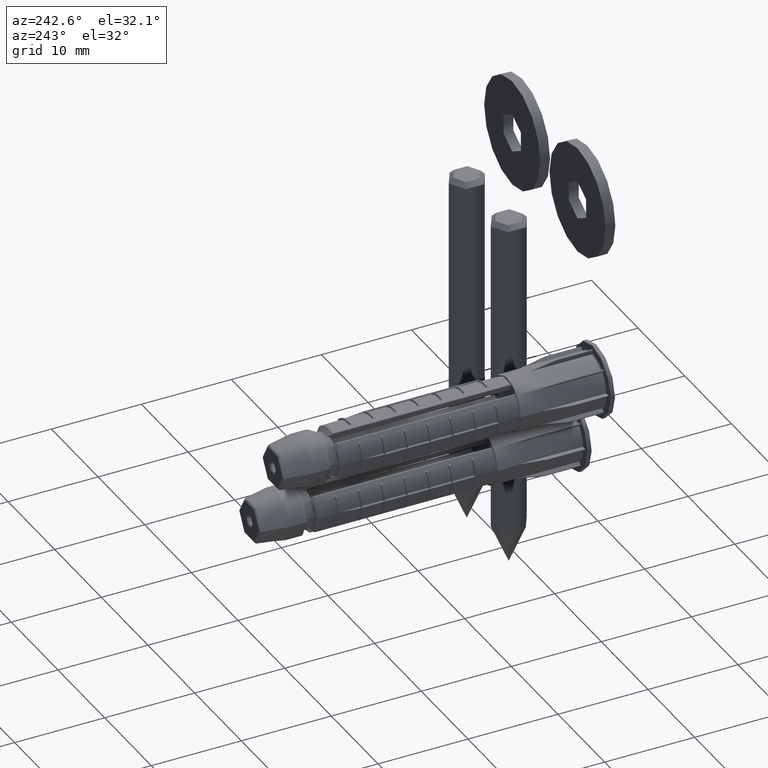
[diagram: clean part render]
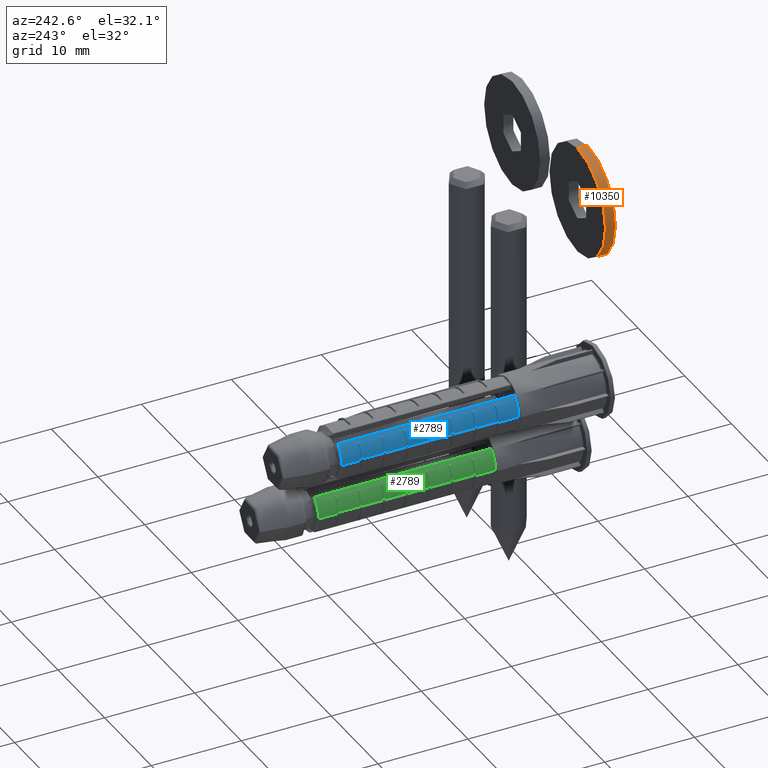
[diagram: same view with three faces highlighted in distinct colors, each labeled with its STEP entity id]
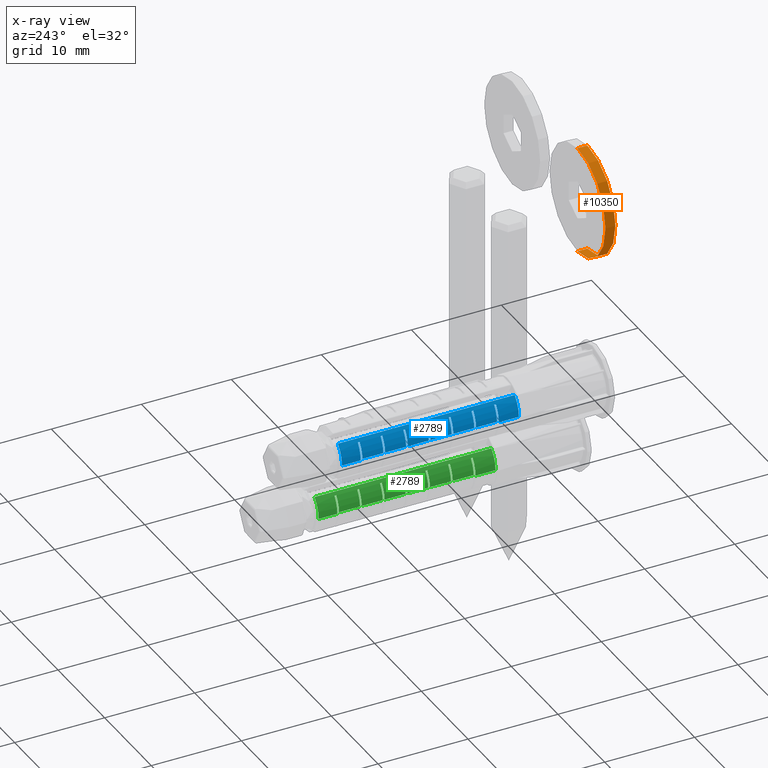
[diagram: x-ray of the same camera — body ghosted, the three highlighted faces saturated]
A machine part, auxiliary view with three faces highlighted in distinct colors.
The next image is the same camera in x-ray (body ghosted, the three faces saturated) — at least one of them is partly hidden behind the body in this view.
Their STEP definitions:

[orange] entity #10350 — the highlighted cylindrical surface (partial cylindrical patch) has radius 6 mm, axis along (-0, -1, -0).
#1043 = LINE ( 'NONE', #27231, #20848 ) ;
#1214 = ORIENTED_EDGE ( 'NONE', *, *, #17098, .F. ) ;
#1373 = LINE ( 'NONE', #24141, #23449 ) ;
#2251 = CARTESIAN_POINT ( 'NONE',  ( 0.000000000000000000, 0.5500000000000000444, 0.000000000000000000 ) ) ;
#2936 = DIRECTION ( 'NONE',  ( -0.000000000000000000, -1.000000000000000000, -0.000000000000000000 ) ) ;
#4201 = DIRECTION ( 'NONE',  ( -0.000000000000000000, -1.000000000000000000, -0.000000000000000000 ) ) ;
#4629 = EDGE_LOOP ( 'NONE', ( #1214, #10319, #25232, #19930 ) ) ;
#5577 = DIRECTION ( 'NONE',  ( 0.000000000000000000, 0.000000000000000000, 1.000000000000000000 ) ) ;
#6791 = VERTEX_POINT ( 'NONE', #8065 ) ;
#7877 = FACE_OUTER_BOUND ( 'NONE', #4629, .T. ) ;
#8035 = CIRCLE ( 'NONE', #17137, 6.000000000000000888 ) ;
#8065 = CARTESIAN_POINT ( 'NONE',  ( 0.000000000000000000, -0.5500000000000000444, -6.000000000000000888 ) ) ;
#8663 = CARTESIAN_POINT ( 'NONE',  ( 0.000000000000000000, -0.5500000000000000444, 0.000000000000000000 ) ) ;
#9011 = AXIS2_PLACEMENT_3D ( 'NONE', #8663, #23380, #10451 ) ;
#9936 = CARTESIAN_POINT ( 'NONE',  ( 7.347880794884120722E-16, -0.5500000000000000444, 6.000000000000000888 ) ) ;
#10319 = ORIENTED_EDGE ( 'NONE', *, *, #16477, .F. ) ;
#10350 = ADVANCED_FACE ( 'NONE', ( #7877 ), #27314, .T. ) ;
#10451 = DIRECTION ( 'NONE',  ( 0.000000000000000000, 0.000000000000000000, 1.000000000000000000 ) ) ;
#10935 = VERTEX_POINT ( 'NONE', #21763 ) ;
#15593 = EDGE_CURVE ( 'NONE', #6791, #22182, #26791, .T. ) ;
#16477 = EDGE_CURVE ( 'NONE', #10935, #26524, #8035, .T. ) ;
#17098 = EDGE_CURVE ( 'NONE', #26524, #22182, #1043, .T. ) ;
#17137 = AXIS2_PLACEMENT_3D ( 'NONE', #20683, #26735, #5577 ) ;
#17642 = EDGE_CURVE ( 'NONE', #10935, #6791, #1373, .T. ) ;
#17908 = AXIS2_PLACEMENT_3D ( 'NONE', #2251, #20787, #24822 ) ;
#18749 = CARTESIAN_POINT ( 'NONE',  ( 7.347880794884120722E-16, 0.5500000000000000444, 6.000000000000000888 ) ) ;
#19930 = ORIENTED_EDGE ( 'NONE', *, *, #15593, .T. ) ;
#20683 = CARTESIAN_POINT ( 'NONE',  ( 0.000000000000000000, 0.5500000000000000444, 0.000000000000000000 ) ) ;
#20787 = DIRECTION ( 'NONE',  ( -0.000000000000000000, -1.000000000000000000, -0.000000000000000000 ) ) ;
#20848 = VECTOR ( 'NONE', #4201, 1000.000000000000000 ) ;
#21763 = CARTESIAN_POINT ( 'NONE',  ( 0.000000000000000000, 0.5500000000000000444, -6.000000000000000888 ) ) ;
#22182 = VERTEX_POINT ( 'NONE', #9936 ) ;
#23380 = DIRECTION ( 'NONE',  ( 0.000000000000000000, 1.000000000000000000, 0.000000000000000000 ) ) ;
#23449 = VECTOR ( 'NONE', #2936, 1000.000000000000000 ) ;
#24141 = CARTESIAN_POINT ( 'NONE',  ( 0.000000000000000000, 0.5500000000000000444, -6.000000000000000888 ) ) ;
#24822 = DIRECTION ( 'NONE',  ( 0.000000000000000000, 0.000000000000000000, -1.000000000000000000 ) ) ;
#25232 = ORIENTED_EDGE ( 'NONE', *, *, #17642, .T. ) ;
#26524 = VERTEX_POINT ( 'NONE', #18749 ) ;
#26735 = DIRECTION ( 'NONE',  ( 0.000000000000000000, 1.000000000000000000, 0.000000000000000000 ) ) ;
#26791 = CIRCLE ( 'NONE', #9011, 6.000000000000000888 ) ;
#27231 = CARTESIAN_POINT ( 'NONE',  ( 7.347880794884120722E-16, 0.5500000000000000444, 6.000000000000000888 ) ) ;
#27314 = CYLINDRICAL_SURFACE ( 'NONE', #17908, 6.000000000000000888 ) ;

[blue] entity #2789 — the highlighted cylindrical surface (edge-blend (fillet) strip) has radius 2.8 mm, axis along (0, 1, 0).
#17 = VERTEX_POINT ( 'NONE', #19890 ) ;
#137 = AXIS2_PLACEMENT_3D ( 'NONE', #14320, #14230, #18545 ) ;
#160 = DIRECTION ( 'NONE',  ( -0.000000000000000000, 1.204669080539449405E-17, 1.000000000000000000 ) ) ;
#344 = DIRECTION ( 'NONE',  ( -0.000000000000000000, 1.204669080539449405E-17, 1.000000000000000000 ) ) ;
#362 = ORIENTED_EDGE ( 'NONE', *, *, #10299, .T. ) ;
#365 = VECTOR ( 'NONE', #12148, 1000.000000000000000 ) ;
#406 = CIRCLE ( 'NONE', #27350, 2.799999999999999822 ) ;
#414 = DIRECTION ( 'NONE',  ( 0.000000000000000000, 6.803593328596414068E-18, 1.000000000000000000 ) ) ;
#555 = VERTEX_POINT ( 'NONE', #16125 ) ;
#672 = EDGE_CURVE ( 'NONE', #23016, #23706, #13032, .T. ) ;
#744 = DIRECTION ( 'NONE',  ( 0.000000000000000000, 1.000000000000000000, 0.000000000000000000 ) ) ;
#984 = VERTEX_POINT ( 'NONE', #7423 ) ;
#1004 = CARTESIAN_POINT ( 'NONE',  ( 1.751241625994621520, 2.184754624067359874, -24.94999999999999574 ) ) ;
#1005 = CARTESIAN_POINT ( 'NONE',  ( 1.751241625994621520, 2.184754624067359874, -22.42499999999999716 ) ) ;
#1154 = VERTEX_POINT ( 'NONE', #5720 ) ;
#1310 = VERTEX_POINT ( 'NONE', #23611 ) ;
#1517 = DIRECTION ( 'NONE',  ( 0.000000000000000000, -1.000000000000000000, 0.000000000000000000 ) ) ;
#1588 = ORIENTED_EDGE ( 'NONE', *, *, #10929, .T. ) ;
#1655 = VECTOR ( 'NONE', #4380, 1000.000000000000000 ) ;
#1720 = CARTESIAN_POINT ( 'NONE',  ( 0.1223901485578622744, 2.797323837444636307, -36.00000000000000000 ) ) ;
#1731 = DIRECTION ( 'NONE',  ( -0.000000000000000000, 1.204669080539449405E-17, 1.000000000000000000 ) ) ;
#1839 = VECTOR ( 'NONE', #3785, 1000.000000000000000 ) ;
#1847 = CARTESIAN_POINT ( 'NONE',  ( 0.1223901485578622467, 2.797323837444635419, -24.94999999999999574 ) ) ;
#1918 = CARTESIAN_POINT ( 'NONE',  ( 0.000000000000000000, -1.788933584601082563E-16, -14.84999999999999964 ) ) ;
#1995 = VERTEX_POINT ( 'NONE', #18942 ) ;
#2017 = ORIENTED_EDGE ( 'NONE', *, *, #17731, .T. ) ;
#2018 = CARTESIAN_POINT ( 'NONE',  ( 0.000000000000000000, 2.799999999999999822, -10.09999999999999787 ) ) ;
#2133 = EDGE_CURVE ( 'NONE', #14842, #11018, #11380, .T. ) ;
#2270 = LINE ( 'NONE', #24503, #12536 ) ;
#2371 = CARTESIAN_POINT ( 'NONE',  ( 0.000000000000000000, -2.701470413109714557E-16, -22.42499999999999716 ) ) ;
#2599 = VECTOR ( 'NONE', #16470, 1000.000000000000000 ) ;
#2789 = ADVANCED_FACE ( 'NONE', ( #3398 ), #14652, .T. ) ;
#2998 = EDGE_CURVE ( 'NONE', #1310, #17, #4739, .T. ) ;
#3063 = VECTOR ( 'NONE', #414, 1000.000000000000000 ) ;
#3117 = CARTESIAN_POINT ( 'NONE',  ( 0.000000000000000000, -3.309828298782136709E-16, -27.47499999999999076 ) ) ;
#3311 = AXIS2_PLACEMENT_3D ( 'NONE', #16002, #9963, #9871 ) ;
#3361 = AXIS2_PLACEMENT_3D ( 'NONE', #4915, #5181, #11557 ) ;
#3398 = FACE_OUTER_BOUND ( 'NONE', #3936, .T. ) ;
#3785 = DIRECTION ( 'NONE',  ( 0.000000000000000000, 6.803593328596414068E-18, 1.000000000000000000 ) ) ;
#3865 = CARTESIAN_POINT ( 'NONE',  ( 0.1223901485578622467, 2.797323837444635419, -22.62500000000000000 ) ) ;
#3936 = EDGE_LOOP ( 'NONE', ( #6145, #362, #1588, #22692, #5231, #27049, #13398, #2017, #26839, #23644, #9461, #4097, #23793, #15963, #10796, #24927, #16708, #26231, #18418, #13595, #22249, #21772, #11459, #15328, #18233, #15674, #12454, #15476, #7107, #6762, #12680, #18392 ) ) ;
#3981 = CARTESIAN_POINT ( 'NONE',  ( 0.000000000000000000, -3.029742737556715059E-16, -25.14999999999999858 ) ) ;
#4002 = CARTESIAN_POINT ( 'NONE',  ( 0.000000000000000000, -2.024069015257432827E-16, -29.74999999999999645 ) ) ;
#4012 = LINE ( 'NONE', #26310, #13580 ) ;
#4097 = ORIENTED_EDGE ( 'NONE', *, *, #13171, .T. ) ;
#4115 = EDGE_CURVE ( 'NONE', #11018, #24163, #6676, .T. ) ;
#4133 = DIRECTION ( 'NONE',  ( -0.000000000000000000, 1.204669080539449405E-17, 1.000000000000000000 ) ) ;
#4380 = DIRECTION ( 'NONE',  ( 0.000000000000000000, 6.803593328596414068E-18, 1.000000000000000000 ) ) ;
#4391 = VERTEX_POINT ( 'NONE', #22168 ) ;
#4476 = EDGE_CURVE ( 'NONE', #18483, #5214, #13251, .T. ) ;
#4632 = DIRECTION ( 'NONE',  ( -0.000000000000000000, -6.803593328596413297E-18, -1.000000000000000000 ) ) ;
#4726 = DIRECTION ( 'NONE',  ( -0.000000000000000000, 1.204669080539449405E-17, 1.000000000000000000 ) ) ;
#4736 = VERTEX_POINT ( 'NONE', #5210 ) ;
#4739 = LINE ( 'NONE', #7584, #7716 ) ;
#4819 = VERTEX_POINT ( 'NONE', #10312 ) ;
#4915 = CARTESIAN_POINT ( 'NONE',  ( 0.000000000000000000, -3.333921680392925148E-16, -27.67499999999999361 ) ) ;
#5181 = DIRECTION ( 'NONE',  ( -0.000000000000000000, 1.204669080539449405E-17, 1.000000000000000000 ) ) ;
#5210 = CARTESIAN_POINT ( 'NONE',  ( 0.000000000000000000, 2.799999999999999378, -12.32500000000000107 ) ) ;
#5214 = VERTEX_POINT ( 'NONE', #3865 ) ;
#5231 = ORIENTED_EDGE ( 'NONE', *, *, #20589, .F. ) ;
#5293 = DIRECTION ( 'NONE',  ( 0.000000000000000000, -1.000000000000000000, 0.000000000000000000 ) ) ;
#5325 = DIRECTION ( 'NONE',  ( 0.000000000000000000, 6.803593328596414068E-18, 1.000000000000000000 ) ) ;
#5720 = CARTESIAN_POINT ( 'NONE',  ( 0.1223901485578622467, 2.797323837444635419, -19.89999999999999858 ) ) ;
#5843 = VECTOR ( 'NONE', #10007, 1000.000000000000000 ) ;
#5874 = DIRECTION ( 'NONE',  ( 0.000000000000000000, 1.000000000000000000, 0.000000000000000000 ) ) ;
#5978 = AXIS2_PLACEMENT_3D ( 'NONE', #22517, #15992, #1517 ) ;
#6145 = ORIENTED_EDGE ( 'NONE', *, *, #9246, .F. ) ;
#6172 = VERTEX_POINT ( 'NONE', #23922 ) ;
#6183 = VERTEX_POINT ( 'NONE', #11347 ) ;
#6240 = LINE ( 'NONE', #6611, #16775 ) ;
#6305 = CARTESIAN_POINT ( 'NONE',  ( 1.751241625994621742, 2.184754624067359874, -12.32500000000000107 ) ) ;
#6327 = DIRECTION ( 'NONE',  ( 0.000000000000000000, 6.803593328596414068E-18, 1.000000000000000000 ) ) ;
#6388 = AXIS2_PLACEMENT_3D ( 'NONE', #27052, #1731, #16650 ) ;
#6504 = EDGE_CURVE ( 'NONE', #23706, #19671, #10265, .T. ) ;
#6611 = CARTESIAN_POINT ( 'NONE',  ( 1.751241625994621520, 2.184754624067360318, -36.00000000000000000 ) ) ;
#6655 = DIRECTION ( 'NONE',  ( 0.000000000000000000, -1.000000000000000000, 0.000000000000000000 ) ) ;
#6661 = CARTESIAN_POINT ( 'NONE',  ( 2.053128646110991884, 1.903854711504647579, -36.00000000000000000 ) ) ;
#6676 = CIRCLE ( 'NONE', #23605, 2.799999999999999822 ) ;
#6699 = CARTESIAN_POINT ( 'NONE',  ( 1.751241625994621742, 2.184754624067360318, -36.00000000000000000 ) ) ;
#6762 = ORIENTED_EDGE ( 'NONE', *, *, #27193, .F. ) ;
#7015 = CIRCLE ( 'NONE', #15894, 2.799999999999999822 ) ;
#7107 = ORIENTED_EDGE ( 'NONE', *, *, #6504, .T. ) ;
#7334 = CIRCLE ( 'NONE', #137, 2.799999999999999378 ) ;
#7423 = CARTESIAN_POINT ( 'NONE',  ( 1.751241625994621742, 2.184754624067359874, -17.37499999999999645 ) ) ;
#7584 = CARTESIAN_POINT ( 'NONE',  ( 0.1223901485578622744, 2.797323837444636307, -36.00000000000000000 ) ) ;
#7716 = VECTOR ( 'NONE', #13920, 1000.000000000000000 ) ;
#7819 = LINE ( 'NONE', #22384, #5843 ) ;
#7981 = CARTESIAN_POINT ( 'NONE',  ( 1.751241625994621520, 2.184754624067359874, -27.47499999999999076 ) ) ;
#8032 = EDGE_CURVE ( 'NONE', #23942, #14683, #6240, .T. ) ;
#8128 = CARTESIAN_POINT ( 'NONE',  ( 0.000000000000000000, -1.508848023375660420E-16, -12.52500000000000213 ) ) ;
#8291 = VERTEX_POINT ( 'NONE', #7981 ) ;
#8409 = DIRECTION ( 'NONE',  ( -0.000000000000000000, 1.204669080539449405E-17, 1.000000000000000000 ) ) ;
#8700 = EDGE_CURVE ( 'NONE', #15712, #8291, #2270, .T. ) ;
#8874 = VERTEX_POINT ( 'NONE', #10364 ) ;
#9170 = DIRECTION ( 'NONE',  ( -0.000000000000000000, -6.803593328596414068E-18, -1.000000000000000000 ) ) ;
#9246 = EDGE_CURVE ( 'NONE', #22665, #4736, #22082, .T. ) ;
#9461 = ORIENTED_EDGE ( 'NONE', *, *, #8032, .T. ) ;
#9871 = DIRECTION ( 'NONE',  ( 0.000000000000000000, -1.000000000000000000, 0.000000000000000000 ) ) ;
#9928 = DIRECTION ( 'NONE',  ( -0.000000000000000000, 1.204669080539449405E-17, 1.000000000000000000 ) ) ;
#9963 = DIRECTION ( 'NONE',  ( -0.000000000000000000, 1.204669080539449405E-17, 1.000000000000000000 ) ) ;
#9983 = CARTESIAN_POINT ( 'NONE',  ( 0.1223901485578622744, 2.797323837444636307, -36.00000000000000000 ) ) ;
#10005 = CARTESIAN_POINT ( 'NONE',  ( 1.751241625994621520, 2.184754624067359874, -22.62500000000000000 ) ) ;
#10007 = DIRECTION ( 'NONE',  ( -0.000000000000000000, -6.803593328596414068E-18, -1.000000000000000000 ) ) ;
#10231 = CARTESIAN_POINT ( 'NONE',  ( 0.000000000000000000, -6.871629261882377608E-17, -10.09999999999999787 ) ) ;
#10265 = LINE ( 'NONE', #10943, #1655 ) ;
#10299 = EDGE_CURVE ( 'NONE', #22665, #25868, #14813, .T. ) ;
#10312 = CARTESIAN_POINT ( 'NONE',  ( 1.751241625994621520, 2.184754624067359874, -20.10000000000000142 ) ) ;
#10364 = CARTESIAN_POINT ( 'NONE',  ( 0.1223901485578622467, 2.797323837444635419, -20.10000000000000142 ) ) ;
#10713 = DIRECTION ( 'NONE',  ( 0.000000000000000000, -1.000000000000000000, 0.000000000000000000 ) ) ;
#10716 = DIRECTION ( 'NONE',  ( 0.000000000000000000, -1.000000000000000000, 0.000000000000000000 ) ) ;
#10796 = ORIENTED_EDGE ( 'NONE', *, *, #2133, .T. ) ;
#10815 = VERTEX_POINT ( 'NONE', #6305 ) ;
#10843 = CIRCLE ( 'NONE', #22867, 2.799999999999999822 ) ;
#10929 = EDGE_CURVE ( 'NONE', #25868, #24108, #14457, .T. ) ;
#10943 = CARTESIAN_POINT ( 'NONE',  ( 0.1223901485578622744, 2.797323837444636307, -36.00000000000000000 ) ) ;
#10960 = EDGE_CURVE ( 'NONE', #1154, #555, #17753, .T. ) ;
#11018 = VERTEX_POINT ( 'NONE', #1005 ) ;
#11085 = AXIS2_PLACEMENT_3D ( 'NONE', #25624, #4632, #744 ) ;
#11347 = CARTESIAN_POINT ( 'NONE',  ( 0.1223901485578622467, 2.797323837444635419, -15.05000000000000071 ) ) ;
#11379 = EDGE_CURVE ( 'NONE', #4391, #1154, #10843, .T. ) ;
#11380 = LINE ( 'NONE', #6699, #3063 ) ;
#11459 = ORIENTED_EDGE ( 'NONE', *, *, #22688, .T. ) ;
#11557 = DIRECTION ( 'NONE',  ( 0.000000000000000000, -1.000000000000000000, 0.000000000000000000 ) ) ;
#12018 = CARTESIAN_POINT ( 'NONE',  ( 1.751241625994621742, 2.184754624067360318, -36.00000000000000000 ) ) ;
#12083 = CARTESIAN_POINT ( 'NONE',  ( 1.751241625994621742, 2.184754624067359874, -12.52500000000000213 ) ) ;
#12148 = DIRECTION ( 'NONE',  ( 0.000000000000000000, 6.803593328596414068E-18, 1.000000000000000000 ) ) ;
#12266 = CIRCLE ( 'NONE', #13792, 2.799999999999999822 ) ;
#12322 = CARTESIAN_POINT ( 'NONE',  ( 1.751241625994621742, 2.184754624067360318, -36.00000000000000000 ) ) ;
#12411 = AXIS2_PLACEMENT_3D ( 'NONE', #3981, #4726, #19439 ) ;
#12454 = ORIENTED_EDGE ( 'NONE', *, *, #22266, .T. ) ;
#12536 = VECTOR ( 'NONE', #20269, 1000.000000000000000 ) ;
#12596 = DIRECTION ( 'NONE',  ( 2.664535259100376091E-15, 1.000000000000000000, 0.000000000000000000 ) ) ;
#12660 = CIRCLE ( 'NONE', #3311, 2.799999999999999378 ) ;
#12680 = ORIENTED_EDGE ( 'NONE', *, *, #24162, .T. ) ;
#12699 = DIRECTION ( 'NONE',  ( 0.000000000000000000, -1.000000000000000000, 0.000000000000000000 ) ) ;
#12711 = VECTOR ( 'NONE', #16672, 1000.000000000000000 ) ;
#12988 = VECTOR ( 'NONE', #6327, 1000.000000000000000 ) ;
#13032 = CIRCLE ( 'NONE', #19310, 2.799999999999999378 ) ;
#13171 = EDGE_CURVE ( 'NONE', #14683, #18483, #23256, .T. ) ;
#13251 = LINE ( 'NONE', #1720, #365 ) ;
#13398 = ORIENTED_EDGE ( 'NONE', *, *, #8700, .T. ) ;
#13530 = EDGE_CURVE ( 'NONE', #24163, #8874, #19615, .T. ) ;
#13580 = VECTOR ( 'NONE', #5325, 1000.000000000000000 ) ;
#13595 = ORIENTED_EDGE ( 'NONE', *, *, #11379, .T. ) ;
#13792 = AXIS2_PLACEMENT_3D ( 'NONE', #3117, #9928, #17973 ) ;
#13851 = DIRECTION ( 'NONE',  ( -0.000000000000000000, 1.204669080539449405E-17, 1.000000000000000000 ) ) ;
#13920 = DIRECTION ( 'NONE',  ( 0.000000000000000000, 6.803593328596414068E-18, 1.000000000000000000 ) ) ;
#14160 = CARTESIAN_POINT ( 'NONE',  ( 2.053128646110991884, 1.903854711504647357, -29.74999999999999645 ) ) ;
#14230 = DIRECTION ( 'NONE',  ( -0.000000000000000000, 1.204669080539449405E-17, 1.000000000000000000 ) ) ;
#14320 = CARTESIAN_POINT ( 'NONE',  ( 0.000000000000000000, -1.484754641764871733E-16, -12.32500000000000107 ) ) ;
#14337 = DIRECTION ( 'NONE',  ( 0.000000000000000000, 6.803593328596413297E-18, 1.000000000000000000 ) ) ;
#14457 = LINE ( 'NONE', #6661, #25958 ) ;
#14652 = CYLINDRICAL_SURFACE ( 'NONE', #11085, 2.799999999999999822 ) ;
#14683 = VERTEX_POINT ( 'NONE', #1004 ) ;
#14813 = CIRCLE ( 'NONE', #23541, 2.799999999999999822 ) ;
#14842 = VERTEX_POINT ( 'NONE', #10005 ) ;
#14963 = DIRECTION ( 'NONE',  ( -0.000000000000000000, 1.204669080539449405E-17, 1.000000000000000000 ) ) ;
#15015 = CARTESIAN_POINT ( 'NONE',  ( 1.751241625994621520, 2.184754624067359874, -27.67499999999999361 ) ) ;
#15224 = DIRECTION ( 'NONE',  ( 0.000000000000000000, 6.803593328596414068E-18, 1.000000000000000000 ) ) ;
#15328 = ORIENTED_EDGE ( 'NONE', *, *, #18281, .T. ) ;
#15469 = CARTESIAN_POINT ( 'NONE',  ( 0.1223901485578622467, 2.797323837444635419, -12.52500000000000213 ) ) ;
#15476 = ORIENTED_EDGE ( 'NONE', *, *, #672, .T. ) ;
#15674 = ORIENTED_EDGE ( 'NONE', *, *, #15949, .F. ) ;
#15712 = VERTEX_POINT ( 'NONE', #15015 ) ;
#15894 = AXIS2_PLACEMENT_3D ( 'NONE', #26372, #13851, #5293 ) ;
#15949 = EDGE_CURVE ( 'NONE', #17615, #6183, #12660, .T. ) ;
#15963 = ORIENTED_EDGE ( 'NONE', *, *, #19336, .F. ) ;
#15992 = DIRECTION ( 'NONE',  ( -0.000000000000000000, 1.204669080539449405E-17, 1.000000000000000000 ) ) ;
#16002 = CARTESIAN_POINT ( 'NONE',  ( 0.000000000000000000, -1.813026966211871249E-16, -15.05000000000000071 ) ) ;
#16118 = DIRECTION ( 'NONE',  ( 0.000000000000000000, 6.803593328596414068E-18, 1.000000000000000000 ) ) ;
#16125 = CARTESIAN_POINT ( 'NONE',  ( 0.1223901485578622467, 2.797323837444635419, -17.57499999999999929 ) ) ;
#16127 = EDGE_CURVE ( 'NONE', #24108, #17909, #406, .T. ) ;
#16154 = CARTESIAN_POINT ( 'NONE',  ( 2.053128646110991884, 1.903854711504647357, -10.09999999999999787 ) ) ;
#16470 = DIRECTION ( 'NONE',  ( -0.000000000000000000, -6.803593328596414068E-18, -1.000000000000000000 ) ) ;
#16618 = CARTESIAN_POINT ( 'NONE',  ( 1.751241625994621742, 2.184754624067359874, -15.05000000000000071 ) ) ;
#16639 = DIRECTION ( 'NONE',  ( 0.000000000000000000, 6.803593328596414068E-18, 1.000000000000000000 ) ) ;
#16650 = DIRECTION ( 'NONE',  ( 0.000000000000000000, -1.000000000000000000, 0.000000000000000000 ) ) ;
#16672 = DIRECTION ( 'NONE',  ( 0.000000000000000000, 6.803593328596414068E-18, 1.000000000000000000 ) ) ;
#16708 = ORIENTED_EDGE ( 'NONE', *, *, #13530, .T. ) ;
#16758 = CARTESIAN_POINT ( 'NONE',  ( 0.000000000000000000, -2.725563794720503983E-16, -22.62500000000000000 ) ) ;
#16775 = VECTOR ( 'NONE', #21349, 1000.000000000000000 ) ;
#16800 = EDGE_CURVE ( 'NONE', #1995, #6183, #4012, .T. ) ;
#17615 = VERTEX_POINT ( 'NONE', #16618 ) ;
#17637 = EDGE_CURVE ( 'NONE', #23942, #17, #24093, .T. ) ;
#17648 = EDGE_CURVE ( 'NONE', #15712, #6172, #19483, .T. ) ;
#17731 = EDGE_CURVE ( 'NONE', #8291, #1310, #12266, .T. ) ;
#17753 = LINE ( 'NONE', #19702, #21380 ) ;
#17909 = VERTEX_POINT ( 'NONE', #25157 ) ;
#17973 = DIRECTION ( 'NONE',  ( 0.000000000000000000, -1.000000000000000000, 0.000000000000000000 ) ) ;
#18189 = CIRCLE ( 'NONE', #20109, 2.799999999999999378 ) ;
#18233 = ORIENTED_EDGE ( 'NONE', *, *, #16800, .T. ) ;
#18281 = EDGE_CURVE ( 'NONE', #984, #1995, #19453, .T. ) ;
#18296 = LINE ( 'NONE', #25051, #12711 ) ;
#18382 = DIRECTION ( 'NONE',  ( -0.000000000000000000, -6.803593328596413297E-18, -1.000000000000000000 ) ) ;
#18392 = ORIENTED_EDGE ( 'NONE', *, *, #26449, .T. ) ;
#18418 = ORIENTED_EDGE ( 'NONE', *, *, #24197, .T. ) ;
#18483 = VERTEX_POINT ( 'NONE', #1847 ) ;
#18545 = DIRECTION ( 'NONE',  ( 0.000000000000000000, -1.000000000000000000, 0.000000000000000000 ) ) ;
#18596 = LINE ( 'NONE', #27036, #12988 ) ;
#18942 = CARTESIAN_POINT ( 'NONE',  ( 0.1223901485578622467, 2.797323837444635419, -17.37499999999999645 ) ) ;
#19310 = AXIS2_PLACEMENT_3D ( 'NONE', #1918, #25206, #12699 ) ;
#19336 = EDGE_CURVE ( 'NONE', #14842, #5214, #23401, .T. ) ;
#19439 = DIRECTION ( 'NONE',  ( 0.000000000000000000, -1.000000000000000000, 0.000000000000000000 ) ) ;
#19453 = CIRCLE ( 'NONE', #6388, 2.799999999999999378 ) ;
#19483 = CIRCLE ( 'NONE', #3361, 2.799999999999999822 ) ;
#19615 = LINE ( 'NONE', #9983, #24577 ) ;
#19671 = VERTEX_POINT ( 'NONE', #15469 ) ;
#19702 = CARTESIAN_POINT ( 'NONE',  ( 0.1223901485578622744, 2.797323837444636307, -36.00000000000000000 ) ) ;
#19763 = CARTESIAN_POINT ( 'NONE',  ( 1.751241625994621520, 2.184754624067359874, -25.14999999999999858 ) ) ;
#19890 = CARTESIAN_POINT ( 'NONE',  ( 0.1223901485578622467, 2.797323837444635419, -25.14999999999999858 ) ) ;
#20109 = AXIS2_PLACEMENT_3D ( 'NONE', #8128, #8409, #24772 ) ;
#20269 = DIRECTION ( 'NONE',  ( 0.000000000000000000, 6.803593328596414068E-18, 1.000000000000000000 ) ) ;
#20582 = AXIS2_PLACEMENT_3D ( 'NONE', #21310, #14963, #6655 ) ;
#20589 = EDGE_CURVE ( 'NONE', #6172, #17909, #7819, .T. ) ;
#21310 = CARTESIAN_POINT ( 'NONE',  ( 0.000000000000000000, -2.117205909048082571E-16, -17.57499999999999929 ) ) ;
#21349 = DIRECTION ( 'NONE',  ( 0.000000000000000000, 6.803593328596414068E-18, 1.000000000000000000 ) ) ;
#21380 = VECTOR ( 'NONE', #15224, 1000.000000000000000 ) ;
#21477 = EDGE_CURVE ( 'NONE', #23477, #555, #27229, .T. ) ;
#21547 = CARTESIAN_POINT ( 'NONE',  ( 0.000000000000000000, -2.397291470273503975E-16, -19.89999999999999858 ) ) ;
#21772 = ORIENTED_EDGE ( 'NONE', *, *, #21477, .F. ) ;
#21931 = CARTESIAN_POINT ( 'NONE',  ( 1.751241625994621742, 2.184754624067359874, -14.84999999999999964 ) ) ;
#21984 = CARTESIAN_POINT ( 'NONE',  ( 1.751241625994621742, 2.184754624067359874, -17.57499999999999929 ) ) ;
#22082 = LINE ( 'NONE', #22815, #2599 ) ;
#22168 = CARTESIAN_POINT ( 'NONE',  ( 1.751241625994621520, 2.184754624067359874, -19.89999999999999858 ) ) ;
#22249 = ORIENTED_EDGE ( 'NONE', *, *, #10960, .T. ) ;
#22266 = EDGE_CURVE ( 'NONE', #17615, #23016, #26212, .T. ) ;
#22384 = CARTESIAN_POINT ( 'NONE',  ( 0.000000000000000000, 2.799999999999999378, -36.00000000000000000 ) ) ;
#22517 = CARTESIAN_POINT ( 'NONE',  ( 0.000000000000000000, -3.005649355945925633E-16, -24.94999999999999574 ) ) ;
#22620 = VERTEX_POINT ( 'NONE', #12083 ) ;
#22665 = VERTEX_POINT ( 'NONE', #2018 ) ;
#22688 = EDGE_CURVE ( 'NONE', #23477, #984, #18296, .T. ) ;
#22692 = ORIENTED_EDGE ( 'NONE', *, *, #16127, .T. ) ;
#22815 = CARTESIAN_POINT ( 'NONE',  ( 0.000000000000000000, 2.799999999999999378, -36.00000000000000000 ) ) ;
#22867 = AXIS2_PLACEMENT_3D ( 'NONE', #21547, #160, #10716 ) ;
#22873 = LINE ( 'NONE', #12322, #24179 ) ;
#23016 = VERTEX_POINT ( 'NONE', #21931 ) ;
#23073 = CARTESIAN_POINT ( 'NONE',  ( 0.1223901485578622467, 2.797323837444635419, -22.42499999999999716 ) ) ;
#23256 = CIRCLE ( 'NONE', #5978, 2.799999999999999822 ) ;
#23401 = CIRCLE ( 'NONE', #25970, 2.799999999999999822 ) ;
#23477 = VERTEX_POINT ( 'NONE', #21984 ) ;
#23541 = AXIS2_PLACEMENT_3D ( 'NONE', #10231, #18382, #5874 ) ;
#23605 = AXIS2_PLACEMENT_3D ( 'NONE', #2371, #344, #25586 ) ;
#23611 = CARTESIAN_POINT ( 'NONE',  ( 0.1223901485578622467, 2.797323837444635419, -27.47499999999999076 ) ) ;
#23644 = ORIENTED_EDGE ( 'NONE', *, *, #17637, .F. ) ;
#23706 = VERTEX_POINT ( 'NONE', #26138 ) ;
#23793 = ORIENTED_EDGE ( 'NONE', *, *, #4476, .T. ) ;
#23922 = CARTESIAN_POINT ( 'NONE',  ( 0.000000000000000000, 2.799999999999999378, -27.67499999999999361 ) ) ;
#23942 = VERTEX_POINT ( 'NONE', #19763 ) ;
#24093 = CIRCLE ( 'NONE', #12411, 2.799999999999999822 ) ;
#24108 = VERTEX_POINT ( 'NONE', #14160 ) ;
#24162 = EDGE_CURVE ( 'NONE', #22620, #10815, #22873, .T. ) ;
#24163 = VERTEX_POINT ( 'NONE', #23073 ) ;
#24179 = VECTOR ( 'NONE', #16639, 1000.000000000000000 ) ;
#24197 = EDGE_CURVE ( 'NONE', #4819, #4391, #18596, .T. ) ;
#24503 = CARTESIAN_POINT ( 'NONE',  ( 1.751241625994621520, 2.184754624067360318, -36.00000000000000000 ) ) ;
#24577 = VECTOR ( 'NONE', #16118, 1000.000000000000000 ) ;
#24772 = DIRECTION ( 'NONE',  ( 0.000000000000000000, -1.000000000000000000, 0.000000000000000000 ) ) ;
#24927 = ORIENTED_EDGE ( 'NONE', *, *, #4115, .T. ) ;
#25051 = CARTESIAN_POINT ( 'NONE',  ( 1.751241625994621742, 2.184754624067360318, -36.00000000000000000 ) ) ;
#25157 = CARTESIAN_POINT ( 'NONE',  ( 0.000000000000000000, 2.799999999999999822, -29.74999999999999645 ) ) ;
#25206 = DIRECTION ( 'NONE',  ( -0.000000000000000000, 1.204669080539449405E-17, 1.000000000000000000 ) ) ;
#25586 = DIRECTION ( 'NONE',  ( 0.000000000000000000, -1.000000000000000000, 0.000000000000000000 ) ) ;
#25624 = CARTESIAN_POINT ( 'NONE',  ( 0.000000000000000000, -2.449293598294708880E-16, -36.00000000000000000 ) ) ;
#25868 = VERTEX_POINT ( 'NONE', #16154 ) ;
#25958 = VECTOR ( 'NONE', #9170, 1000.000000000000000 ) ;
#25970 = AXIS2_PLACEMENT_3D ( 'NONE', #16758, #4133, #10713 ) ;
#26138 = CARTESIAN_POINT ( 'NONE',  ( 0.1223901485578622467, 2.797323837444635419, -14.84999999999999964 ) ) ;
#26212 = LINE ( 'NONE', #12018, #1839 ) ;
#26231 = ORIENTED_EDGE ( 'NONE', *, *, #26819, .F. ) ;
#26310 = CARTESIAN_POINT ( 'NONE',  ( 0.1223901485578622744, 2.797323837444636307, -36.00000000000000000 ) ) ;
#26372 = CARTESIAN_POINT ( 'NONE',  ( 0.000000000000000000, -2.421384851884293400E-16, -20.10000000000000142 ) ) ;
#26449 = EDGE_CURVE ( 'NONE', #10815, #4736, #7334, .T. ) ;
#26819 = EDGE_CURVE ( 'NONE', #4819, #8874, #7015, .T. ) ;
#26839 = ORIENTED_EDGE ( 'NONE', *, *, #2998, .T. ) ;
#27036 = CARTESIAN_POINT ( 'NONE',  ( 1.751241625994621742, 2.184754624067360318, -36.00000000000000000 ) ) ;
#27049 = ORIENTED_EDGE ( 'NONE', *, *, #17648, .F. ) ;
#27052 = CARTESIAN_POINT ( 'NONE',  ( 0.000000000000000000, -2.093112527437293145E-16, -17.37499999999999645 ) ) ;
#27193 = EDGE_CURVE ( 'NONE', #22620, #19671, #18189, .T. ) ;
#27229 = CIRCLE ( 'NONE', #20582, 2.799999999999999378 ) ;
#27350 = AXIS2_PLACEMENT_3D ( 'NONE', #4002, #14337, #12596 ) ;

[green] entity #2789 — the highlighted cylindrical surface (edge-blend (fillet) strip) has radius 2.8 mm, axis along (0, 1, 0).
#17 = VERTEX_POINT ( 'NONE', #19890 ) ;
#137 = AXIS2_PLACEMENT_3D ( 'NONE', #14320, #14230, #18545 ) ;
#160 = DIRECTION ( 'NONE',  ( -0.000000000000000000, 1.204669080539449405E-17, 1.000000000000000000 ) ) ;
#344 = DIRECTION ( 'NONE',  ( -0.000000000000000000, 1.204669080539449405E-17, 1.000000000000000000 ) ) ;
#362 = ORIENTED_EDGE ( 'NONE', *, *, #10299, .T. ) ;
#365 = VECTOR ( 'NONE', #12148, 1000.000000000000000 ) ;
#406 = CIRCLE ( 'NONE', #27350, 2.799999999999999822 ) ;
#414 = DIRECTION ( 'NONE',  ( 0.000000000000000000, 6.803593328596414068E-18, 1.000000000000000000 ) ) ;
#555 = VERTEX_POINT ( 'NONE', #16125 ) ;
#672 = EDGE_CURVE ( 'NONE', #23016, #23706, #13032, .T. ) ;
#744 = DIRECTION ( 'NONE',  ( 0.000000000000000000, 1.000000000000000000, 0.000000000000000000 ) ) ;
#984 = VERTEX_POINT ( 'NONE', #7423 ) ;
#1004 = CARTESIAN_POINT ( 'NONE',  ( 1.751241625994621520, 2.184754624067359874, -24.94999999999999574 ) ) ;
#1005 = CARTESIAN_POINT ( 'NONE',  ( 1.751241625994621520, 2.184754624067359874, -22.42499999999999716 ) ) ;
#1154 = VERTEX_POINT ( 'NONE', #5720 ) ;
#1310 = VERTEX_POINT ( 'NONE', #23611 ) ;
#1517 = DIRECTION ( 'NONE',  ( 0.000000000000000000, -1.000000000000000000, 0.000000000000000000 ) ) ;
#1588 = ORIENTED_EDGE ( 'NONE', *, *, #10929, .T. ) ;
#1655 = VECTOR ( 'NONE', #4380, 1000.000000000000000 ) ;
#1720 = CARTESIAN_POINT ( 'NONE',  ( 0.1223901485578622744, 2.797323837444636307, -36.00000000000000000 ) ) ;
#1731 = DIRECTION ( 'NONE',  ( -0.000000000000000000, 1.204669080539449405E-17, 1.000000000000000000 ) ) ;
#1839 = VECTOR ( 'NONE', #3785, 1000.000000000000000 ) ;
#1847 = CARTESIAN_POINT ( 'NONE',  ( 0.1223901485578622467, 2.797323837444635419, -24.94999999999999574 ) ) ;
#1918 = CARTESIAN_POINT ( 'NONE',  ( 0.000000000000000000, -1.788933584601082563E-16, -14.84999999999999964 ) ) ;
#1995 = VERTEX_POINT ( 'NONE', #18942 ) ;
#2017 = ORIENTED_EDGE ( 'NONE', *, *, #17731, .T. ) ;
#2018 = CARTESIAN_POINT ( 'NONE',  ( 0.000000000000000000, 2.799999999999999822, -10.09999999999999787 ) ) ;
#2133 = EDGE_CURVE ( 'NONE', #14842, #11018, #11380, .T. ) ;
#2270 = LINE ( 'NONE', #24503, #12536 ) ;
#2371 = CARTESIAN_POINT ( 'NONE',  ( 0.000000000000000000, -2.701470413109714557E-16, -22.42499999999999716 ) ) ;
#2599 = VECTOR ( 'NONE', #16470, 1000.000000000000000 ) ;
#2789 = ADVANCED_FACE ( 'NONE', ( #3398 ), #14652, .T. ) ;
#2998 = EDGE_CURVE ( 'NONE', #1310, #17, #4739, .T. ) ;
#3063 = VECTOR ( 'NONE', #414, 1000.000000000000000 ) ;
#3117 = CARTESIAN_POINT ( 'NONE',  ( 0.000000000000000000, -3.309828298782136709E-16, -27.47499999999999076 ) ) ;
#3311 = AXIS2_PLACEMENT_3D ( 'NONE', #16002, #9963, #9871 ) ;
#3361 = AXIS2_PLACEMENT_3D ( 'NONE', #4915, #5181, #11557 ) ;
#3398 = FACE_OUTER_BOUND ( 'NONE', #3936, .T. ) ;
#3785 = DIRECTION ( 'NONE',  ( 0.000000000000000000, 6.803593328596414068E-18, 1.000000000000000000 ) ) ;
#3865 = CARTESIAN_POINT ( 'NONE',  ( 0.1223901485578622467, 2.797323837444635419, -22.62500000000000000 ) ) ;
#3936 = EDGE_LOOP ( 'NONE', ( #6145, #362, #1588, #22692, #5231, #27049, #13398, #2017, #26839, #23644, #9461, #4097, #23793, #15963, #10796, #24927, #16708, #26231, #18418, #13595, #22249, #21772, #11459, #15328, #18233, #15674, #12454, #15476, #7107, #6762, #12680, #18392 ) ) ;
#3981 = CARTESIAN_POINT ( 'NONE',  ( 0.000000000000000000, -3.029742737556715059E-16, -25.14999999999999858 ) ) ;
#4002 = CARTESIAN_POINT ( 'NONE',  ( 0.000000000000000000, -2.024069015257432827E-16, -29.74999999999999645 ) ) ;
#4012 = LINE ( 'NONE', #26310, #13580 ) ;
#4097 = ORIENTED_EDGE ( 'NONE', *, *, #13171, .T. ) ;
#4115 = EDGE_CURVE ( 'NONE', #11018, #24163, #6676, .T. ) ;
#4133 = DIRECTION ( 'NONE',  ( -0.000000000000000000, 1.204669080539449405E-17, 1.000000000000000000 ) ) ;
#4380 = DIRECTION ( 'NONE',  ( 0.000000000000000000, 6.803593328596414068E-18, 1.000000000000000000 ) ) ;
#4391 = VERTEX_POINT ( 'NONE', #22168 ) ;
#4476 = EDGE_CURVE ( 'NONE', #18483, #5214, #13251, .T. ) ;
#4632 = DIRECTION ( 'NONE',  ( -0.000000000000000000, -6.803593328596413297E-18, -1.000000000000000000 ) ) ;
#4726 = DIRECTION ( 'NONE',  ( -0.000000000000000000, 1.204669080539449405E-17, 1.000000000000000000 ) ) ;
#4736 = VERTEX_POINT ( 'NONE', #5210 ) ;
#4739 = LINE ( 'NONE', #7584, #7716 ) ;
#4819 = VERTEX_POINT ( 'NONE', #10312 ) ;
#4915 = CARTESIAN_POINT ( 'NONE',  ( 0.000000000000000000, -3.333921680392925148E-16, -27.67499999999999361 ) ) ;
#5181 = DIRECTION ( 'NONE',  ( -0.000000000000000000, 1.204669080539449405E-17, 1.000000000000000000 ) ) ;
#5210 = CARTESIAN_POINT ( 'NONE',  ( 0.000000000000000000, 2.799999999999999378, -12.32500000000000107 ) ) ;
#5214 = VERTEX_POINT ( 'NONE', #3865 ) ;
#5231 = ORIENTED_EDGE ( 'NONE', *, *, #20589, .F. ) ;
#5293 = DIRECTION ( 'NONE',  ( 0.000000000000000000, -1.000000000000000000, 0.000000000000000000 ) ) ;
#5325 = DIRECTION ( 'NONE',  ( 0.000000000000000000, 6.803593328596414068E-18, 1.000000000000000000 ) ) ;
#5720 = CARTESIAN_POINT ( 'NONE',  ( 0.1223901485578622467, 2.797323837444635419, -19.89999999999999858 ) ) ;
#5843 = VECTOR ( 'NONE', #10007, 1000.000000000000000 ) ;
#5874 = DIRECTION ( 'NONE',  ( 0.000000000000000000, 1.000000000000000000, 0.000000000000000000 ) ) ;
#5978 = AXIS2_PLACEMENT_3D ( 'NONE', #22517, #15992, #1517 ) ;
#6145 = ORIENTED_EDGE ( 'NONE', *, *, #9246, .F. ) ;
#6172 = VERTEX_POINT ( 'NONE', #23922 ) ;
#6183 = VERTEX_POINT ( 'NONE', #11347 ) ;
#6240 = LINE ( 'NONE', #6611, #16775 ) ;
#6305 = CARTESIAN_POINT ( 'NONE',  ( 1.751241625994621742, 2.184754624067359874, -12.32500000000000107 ) ) ;
#6327 = DIRECTION ( 'NONE',  ( 0.000000000000000000, 6.803593328596414068E-18, 1.000000000000000000 ) ) ;
#6388 = AXIS2_PLACEMENT_3D ( 'NONE', #27052, #1731, #16650 ) ;
#6504 = EDGE_CURVE ( 'NONE', #23706, #19671, #10265, .T. ) ;
#6611 = CARTESIAN_POINT ( 'NONE',  ( 1.751241625994621520, 2.184754624067360318, -36.00000000000000000 ) ) ;
#6655 = DIRECTION ( 'NONE',  ( 0.000000000000000000, -1.000000000000000000, 0.000000000000000000 ) ) ;
#6661 = CARTESIAN_POINT ( 'NONE',  ( 2.053128646110991884, 1.903854711504647579, -36.00000000000000000 ) ) ;
#6676 = CIRCLE ( 'NONE', #23605, 2.799999999999999822 ) ;
#6699 = CARTESIAN_POINT ( 'NONE',  ( 1.751241625994621742, 2.184754624067360318, -36.00000000000000000 ) ) ;
#6762 = ORIENTED_EDGE ( 'NONE', *, *, #27193, .F. ) ;
#7015 = CIRCLE ( 'NONE', #15894, 2.799999999999999822 ) ;
#7107 = ORIENTED_EDGE ( 'NONE', *, *, #6504, .T. ) ;
#7334 = CIRCLE ( 'NONE', #137, 2.799999999999999378 ) ;
#7423 = CARTESIAN_POINT ( 'NONE',  ( 1.751241625994621742, 2.184754624067359874, -17.37499999999999645 ) ) ;
#7584 = CARTESIAN_POINT ( 'NONE',  ( 0.1223901485578622744, 2.797323837444636307, -36.00000000000000000 ) ) ;
#7716 = VECTOR ( 'NONE', #13920, 1000.000000000000000 ) ;
#7819 = LINE ( 'NONE', #22384, #5843 ) ;
#7981 = CARTESIAN_POINT ( 'NONE',  ( 1.751241625994621520, 2.184754624067359874, -27.47499999999999076 ) ) ;
#8032 = EDGE_CURVE ( 'NONE', #23942, #14683, #6240, .T. ) ;
#8128 = CARTESIAN_POINT ( 'NONE',  ( 0.000000000000000000, -1.508848023375660420E-16, -12.52500000000000213 ) ) ;
#8291 = VERTEX_POINT ( 'NONE', #7981 ) ;
#8409 = DIRECTION ( 'NONE',  ( -0.000000000000000000, 1.204669080539449405E-17, 1.000000000000000000 ) ) ;
#8700 = EDGE_CURVE ( 'NONE', #15712, #8291, #2270, .T. ) ;
#8874 = VERTEX_POINT ( 'NONE', #10364 ) ;
#9170 = DIRECTION ( 'NONE',  ( -0.000000000000000000, -6.803593328596414068E-18, -1.000000000000000000 ) ) ;
#9246 = EDGE_CURVE ( 'NONE', #22665, #4736, #22082, .T. ) ;
#9461 = ORIENTED_EDGE ( 'NONE', *, *, #8032, .T. ) ;
#9871 = DIRECTION ( 'NONE',  ( 0.000000000000000000, -1.000000000000000000, 0.000000000000000000 ) ) ;
#9928 = DIRECTION ( 'NONE',  ( -0.000000000000000000, 1.204669080539449405E-17, 1.000000000000000000 ) ) ;
#9963 = DIRECTION ( 'NONE',  ( -0.000000000000000000, 1.204669080539449405E-17, 1.000000000000000000 ) ) ;
#9983 = CARTESIAN_POINT ( 'NONE',  ( 0.1223901485578622744, 2.797323837444636307, -36.00000000000000000 ) ) ;
#10005 = CARTESIAN_POINT ( 'NONE',  ( 1.751241625994621520, 2.184754624067359874, -22.62500000000000000 ) ) ;
#10007 = DIRECTION ( 'NONE',  ( -0.000000000000000000, -6.803593328596414068E-18, -1.000000000000000000 ) ) ;
#10231 = CARTESIAN_POINT ( 'NONE',  ( 0.000000000000000000, -6.871629261882377608E-17, -10.09999999999999787 ) ) ;
#10265 = LINE ( 'NONE', #10943, #1655 ) ;
#10299 = EDGE_CURVE ( 'NONE', #22665, #25868, #14813, .T. ) ;
#10312 = CARTESIAN_POINT ( 'NONE',  ( 1.751241625994621520, 2.184754624067359874, -20.10000000000000142 ) ) ;
#10364 = CARTESIAN_POINT ( 'NONE',  ( 0.1223901485578622467, 2.797323837444635419, -20.10000000000000142 ) ) ;
#10713 = DIRECTION ( 'NONE',  ( 0.000000000000000000, -1.000000000000000000, 0.000000000000000000 ) ) ;
#10716 = DIRECTION ( 'NONE',  ( 0.000000000000000000, -1.000000000000000000, 0.000000000000000000 ) ) ;
#10796 = ORIENTED_EDGE ( 'NONE', *, *, #2133, .T. ) ;
#10815 = VERTEX_POINT ( 'NONE', #6305 ) ;
#10843 = CIRCLE ( 'NONE', #22867, 2.799999999999999822 ) ;
#10929 = EDGE_CURVE ( 'NONE', #25868, #24108, #14457, .T. ) ;
#10943 = CARTESIAN_POINT ( 'NONE',  ( 0.1223901485578622744, 2.797323837444636307, -36.00000000000000000 ) ) ;
#10960 = EDGE_CURVE ( 'NONE', #1154, #555, #17753, .T. ) ;
#11018 = VERTEX_POINT ( 'NONE', #1005 ) ;
#11085 = AXIS2_PLACEMENT_3D ( 'NONE', #25624, #4632, #744 ) ;
#11347 = CARTESIAN_POINT ( 'NONE',  ( 0.1223901485578622467, 2.797323837444635419, -15.05000000000000071 ) ) ;
#11379 = EDGE_CURVE ( 'NONE', #4391, #1154, #10843, .T. ) ;
#11380 = LINE ( 'NONE', #6699, #3063 ) ;
#11459 = ORIENTED_EDGE ( 'NONE', *, *, #22688, .T. ) ;
#11557 = DIRECTION ( 'NONE',  ( 0.000000000000000000, -1.000000000000000000, 0.000000000000000000 ) ) ;
#12018 = CARTESIAN_POINT ( 'NONE',  ( 1.751241625994621742, 2.184754624067360318, -36.00000000000000000 ) ) ;
#12083 = CARTESIAN_POINT ( 'NONE',  ( 1.751241625994621742, 2.184754624067359874, -12.52500000000000213 ) ) ;
#12148 = DIRECTION ( 'NONE',  ( 0.000000000000000000, 6.803593328596414068E-18, 1.000000000000000000 ) ) ;
#12266 = CIRCLE ( 'NONE', #13792, 2.799999999999999822 ) ;
#12322 = CARTESIAN_POINT ( 'NONE',  ( 1.751241625994621742, 2.184754624067360318, -36.00000000000000000 ) ) ;
#12411 = AXIS2_PLACEMENT_3D ( 'NONE', #3981, #4726, #19439 ) ;
#12454 = ORIENTED_EDGE ( 'NONE', *, *, #22266, .T. ) ;
#12536 = VECTOR ( 'NONE', #20269, 1000.000000000000000 ) ;
#12596 = DIRECTION ( 'NONE',  ( 2.664535259100376091E-15, 1.000000000000000000, 0.000000000000000000 ) ) ;
#12660 = CIRCLE ( 'NONE', #3311, 2.799999999999999378 ) ;
#12680 = ORIENTED_EDGE ( 'NONE', *, *, #24162, .T. ) ;
#12699 = DIRECTION ( 'NONE',  ( 0.000000000000000000, -1.000000000000000000, 0.000000000000000000 ) ) ;
#12711 = VECTOR ( 'NONE', #16672, 1000.000000000000000 ) ;
#12988 = VECTOR ( 'NONE', #6327, 1000.000000000000000 ) ;
#13032 = CIRCLE ( 'NONE', #19310, 2.799999999999999378 ) ;
#13171 = EDGE_CURVE ( 'NONE', #14683, #18483, #23256, .T. ) ;
#13251 = LINE ( 'NONE', #1720, #365 ) ;
#13398 = ORIENTED_EDGE ( 'NONE', *, *, #8700, .T. ) ;
#13530 = EDGE_CURVE ( 'NONE', #24163, #8874, #19615, .T. ) ;
#13580 = VECTOR ( 'NONE', #5325, 1000.000000000000000 ) ;
#13595 = ORIENTED_EDGE ( 'NONE', *, *, #11379, .T. ) ;
#13792 = AXIS2_PLACEMENT_3D ( 'NONE', #3117, #9928, #17973 ) ;
#13851 = DIRECTION ( 'NONE',  ( -0.000000000000000000, 1.204669080539449405E-17, 1.000000000000000000 ) ) ;
#13920 = DIRECTION ( 'NONE',  ( 0.000000000000000000, 6.803593328596414068E-18, 1.000000000000000000 ) ) ;
#14160 = CARTESIAN_POINT ( 'NONE',  ( 2.053128646110991884, 1.903854711504647357, -29.74999999999999645 ) ) ;
#14230 = DIRECTION ( 'NONE',  ( -0.000000000000000000, 1.204669080539449405E-17, 1.000000000000000000 ) ) ;
#14320 = CARTESIAN_POINT ( 'NONE',  ( 0.000000000000000000, -1.484754641764871733E-16, -12.32500000000000107 ) ) ;
#14337 = DIRECTION ( 'NONE',  ( 0.000000000000000000, 6.803593328596413297E-18, 1.000000000000000000 ) ) ;
#14457 = LINE ( 'NONE', #6661, #25958 ) ;
#14652 = CYLINDRICAL_SURFACE ( 'NONE', #11085, 2.799999999999999822 ) ;
#14683 = VERTEX_POINT ( 'NONE', #1004 ) ;
#14813 = CIRCLE ( 'NONE', #23541, 2.799999999999999822 ) ;
#14842 = VERTEX_POINT ( 'NONE', #10005 ) ;
#14963 = DIRECTION ( 'NONE',  ( -0.000000000000000000, 1.204669080539449405E-17, 1.000000000000000000 ) ) ;
#15015 = CARTESIAN_POINT ( 'NONE',  ( 1.751241625994621520, 2.184754624067359874, -27.67499999999999361 ) ) ;
#15224 = DIRECTION ( 'NONE',  ( 0.000000000000000000, 6.803593328596414068E-18, 1.000000000000000000 ) ) ;
#15328 = ORIENTED_EDGE ( 'NONE', *, *, #18281, .T. ) ;
#15469 = CARTESIAN_POINT ( 'NONE',  ( 0.1223901485578622467, 2.797323837444635419, -12.52500000000000213 ) ) ;
#15476 = ORIENTED_EDGE ( 'NONE', *, *, #672, .T. ) ;
#15674 = ORIENTED_EDGE ( 'NONE', *, *, #15949, .F. ) ;
#15712 = VERTEX_POINT ( 'NONE', #15015 ) ;
#15894 = AXIS2_PLACEMENT_3D ( 'NONE', #26372, #13851, #5293 ) ;
#15949 = EDGE_CURVE ( 'NONE', #17615, #6183, #12660, .T. ) ;
#15963 = ORIENTED_EDGE ( 'NONE', *, *, #19336, .F. ) ;
#15992 = DIRECTION ( 'NONE',  ( -0.000000000000000000, 1.204669080539449405E-17, 1.000000000000000000 ) ) ;
#16002 = CARTESIAN_POINT ( 'NONE',  ( 0.000000000000000000, -1.813026966211871249E-16, -15.05000000000000071 ) ) ;
#16118 = DIRECTION ( 'NONE',  ( 0.000000000000000000, 6.803593328596414068E-18, 1.000000000000000000 ) ) ;
#16125 = CARTESIAN_POINT ( 'NONE',  ( 0.1223901485578622467, 2.797323837444635419, -17.57499999999999929 ) ) ;
#16127 = EDGE_CURVE ( 'NONE', #24108, #17909, #406, .T. ) ;
#16154 = CARTESIAN_POINT ( 'NONE',  ( 2.053128646110991884, 1.903854711504647357, -10.09999999999999787 ) ) ;
#16470 = DIRECTION ( 'NONE',  ( -0.000000000000000000, -6.803593328596414068E-18, -1.000000000000000000 ) ) ;
#16618 = CARTESIAN_POINT ( 'NONE',  ( 1.751241625994621742, 2.184754624067359874, -15.05000000000000071 ) ) ;
#16639 = DIRECTION ( 'NONE',  ( 0.000000000000000000, 6.803593328596414068E-18, 1.000000000000000000 ) ) ;
#16650 = DIRECTION ( 'NONE',  ( 0.000000000000000000, -1.000000000000000000, 0.000000000000000000 ) ) ;
#16672 = DIRECTION ( 'NONE',  ( 0.000000000000000000, 6.803593328596414068E-18, 1.000000000000000000 ) ) ;
#16708 = ORIENTED_EDGE ( 'NONE', *, *, #13530, .T. ) ;
#16758 = CARTESIAN_POINT ( 'NONE',  ( 0.000000000000000000, -2.725563794720503983E-16, -22.62500000000000000 ) ) ;
#16775 = VECTOR ( 'NONE', #21349, 1000.000000000000000 ) ;
#16800 = EDGE_CURVE ( 'NONE', #1995, #6183, #4012, .T. ) ;
#17615 = VERTEX_POINT ( 'NONE', #16618 ) ;
#17637 = EDGE_CURVE ( 'NONE', #23942, #17, #24093, .T. ) ;
#17648 = EDGE_CURVE ( 'NONE', #15712, #6172, #19483, .T. ) ;
#17731 = EDGE_CURVE ( 'NONE', #8291, #1310, #12266, .T. ) ;
#17753 = LINE ( 'NONE', #19702, #21380 ) ;
#17909 = VERTEX_POINT ( 'NONE', #25157 ) ;
#17973 = DIRECTION ( 'NONE',  ( 0.000000000000000000, -1.000000000000000000, 0.000000000000000000 ) ) ;
#18189 = CIRCLE ( 'NONE', #20109, 2.799999999999999378 ) ;
#18233 = ORIENTED_EDGE ( 'NONE', *, *, #16800, .T. ) ;
#18281 = EDGE_CURVE ( 'NONE', #984, #1995, #19453, .T. ) ;
#18296 = LINE ( 'NONE', #25051, #12711 ) ;
#18382 = DIRECTION ( 'NONE',  ( -0.000000000000000000, -6.803593328596413297E-18, -1.000000000000000000 ) ) ;
#18392 = ORIENTED_EDGE ( 'NONE', *, *, #26449, .T. ) ;
#18418 = ORIENTED_EDGE ( 'NONE', *, *, #24197, .T. ) ;
#18483 = VERTEX_POINT ( 'NONE', #1847 ) ;
#18545 = DIRECTION ( 'NONE',  ( 0.000000000000000000, -1.000000000000000000, 0.000000000000000000 ) ) ;
#18596 = LINE ( 'NONE', #27036, #12988 ) ;
#18942 = CARTESIAN_POINT ( 'NONE',  ( 0.1223901485578622467, 2.797323837444635419, -17.37499999999999645 ) ) ;
#19310 = AXIS2_PLACEMENT_3D ( 'NONE', #1918, #25206, #12699 ) ;
#19336 = EDGE_CURVE ( 'NONE', #14842, #5214, #23401, .T. ) ;
#19439 = DIRECTION ( 'NONE',  ( 0.000000000000000000, -1.000000000000000000, 0.000000000000000000 ) ) ;
#19453 = CIRCLE ( 'NONE', #6388, 2.799999999999999378 ) ;
#19483 = CIRCLE ( 'NONE', #3361, 2.799999999999999822 ) ;
#19615 = LINE ( 'NONE', #9983, #24577 ) ;
#19671 = VERTEX_POINT ( 'NONE', #15469 ) ;
#19702 = CARTESIAN_POINT ( 'NONE',  ( 0.1223901485578622744, 2.797323837444636307, -36.00000000000000000 ) ) ;
#19763 = CARTESIAN_POINT ( 'NONE',  ( 1.751241625994621520, 2.184754624067359874, -25.14999999999999858 ) ) ;
#19890 = CARTESIAN_POINT ( 'NONE',  ( 0.1223901485578622467, 2.797323837444635419, -25.14999999999999858 ) ) ;
#20109 = AXIS2_PLACEMENT_3D ( 'NONE', #8128, #8409, #24772 ) ;
#20269 = DIRECTION ( 'NONE',  ( 0.000000000000000000, 6.803593328596414068E-18, 1.000000000000000000 ) ) ;
#20582 = AXIS2_PLACEMENT_3D ( 'NONE', #21310, #14963, #6655 ) ;
#20589 = EDGE_CURVE ( 'NONE', #6172, #17909, #7819, .T. ) ;
#21310 = CARTESIAN_POINT ( 'NONE',  ( 0.000000000000000000, -2.117205909048082571E-16, -17.57499999999999929 ) ) ;
#21349 = DIRECTION ( 'NONE',  ( 0.000000000000000000, 6.803593328596414068E-18, 1.000000000000000000 ) ) ;
#21380 = VECTOR ( 'NONE', #15224, 1000.000000000000000 ) ;
#21477 = EDGE_CURVE ( 'NONE', #23477, #555, #27229, .T. ) ;
#21547 = CARTESIAN_POINT ( 'NONE',  ( 0.000000000000000000, -2.397291470273503975E-16, -19.89999999999999858 ) ) ;
#21772 = ORIENTED_EDGE ( 'NONE', *, *, #21477, .F. ) ;
#21931 = CARTESIAN_POINT ( 'NONE',  ( 1.751241625994621742, 2.184754624067359874, -14.84999999999999964 ) ) ;
#21984 = CARTESIAN_POINT ( 'NONE',  ( 1.751241625994621742, 2.184754624067359874, -17.57499999999999929 ) ) ;
#22082 = LINE ( 'NONE', #22815, #2599 ) ;
#22168 = CARTESIAN_POINT ( 'NONE',  ( 1.751241625994621520, 2.184754624067359874, -19.89999999999999858 ) ) ;
#22249 = ORIENTED_EDGE ( 'NONE', *, *, #10960, .T. ) ;
#22266 = EDGE_CURVE ( 'NONE', #17615, #23016, #26212, .T. ) ;
#22384 = CARTESIAN_POINT ( 'NONE',  ( 0.000000000000000000, 2.799999999999999378, -36.00000000000000000 ) ) ;
#22517 = CARTESIAN_POINT ( 'NONE',  ( 0.000000000000000000, -3.005649355945925633E-16, -24.94999999999999574 ) ) ;
#22620 = VERTEX_POINT ( 'NONE', #12083 ) ;
#22665 = VERTEX_POINT ( 'NONE', #2018 ) ;
#22688 = EDGE_CURVE ( 'NONE', #23477, #984, #18296, .T. ) ;
#22692 = ORIENTED_EDGE ( 'NONE', *, *, #16127, .T. ) ;
#22815 = CARTESIAN_POINT ( 'NONE',  ( 0.000000000000000000, 2.799999999999999378, -36.00000000000000000 ) ) ;
#22867 = AXIS2_PLACEMENT_3D ( 'NONE', #21547, #160, #10716 ) ;
#22873 = LINE ( 'NONE', #12322, #24179 ) ;
#23016 = VERTEX_POINT ( 'NONE', #21931 ) ;
#23073 = CARTESIAN_POINT ( 'NONE',  ( 0.1223901485578622467, 2.797323837444635419, -22.42499999999999716 ) ) ;
#23256 = CIRCLE ( 'NONE', #5978, 2.799999999999999822 ) ;
#23401 = CIRCLE ( 'NONE', #25970, 2.799999999999999822 ) ;
#23477 = VERTEX_POINT ( 'NONE', #21984 ) ;
#23541 = AXIS2_PLACEMENT_3D ( 'NONE', #10231, #18382, #5874 ) ;
#23605 = AXIS2_PLACEMENT_3D ( 'NONE', #2371, #344, #25586 ) ;
#23611 = CARTESIAN_POINT ( 'NONE',  ( 0.1223901485578622467, 2.797323837444635419, -27.47499999999999076 ) ) ;
#23644 = ORIENTED_EDGE ( 'NONE', *, *, #17637, .F. ) ;
#23706 = VERTEX_POINT ( 'NONE', #26138 ) ;
#23793 = ORIENTED_EDGE ( 'NONE', *, *, #4476, .T. ) ;
#23922 = CARTESIAN_POINT ( 'NONE',  ( 0.000000000000000000, 2.799999999999999378, -27.67499999999999361 ) ) ;
#23942 = VERTEX_POINT ( 'NONE', #19763 ) ;
#24093 = CIRCLE ( 'NONE', #12411, 2.799999999999999822 ) ;
#24108 = VERTEX_POINT ( 'NONE', #14160 ) ;
#24162 = EDGE_CURVE ( 'NONE', #22620, #10815, #22873, .T. ) ;
#24163 = VERTEX_POINT ( 'NONE', #23073 ) ;
#24179 = VECTOR ( 'NONE', #16639, 1000.000000000000000 ) ;
#24197 = EDGE_CURVE ( 'NONE', #4819, #4391, #18596, .T. ) ;
#24503 = CARTESIAN_POINT ( 'NONE',  ( 1.751241625994621520, 2.184754624067360318, -36.00000000000000000 ) ) ;
#24577 = VECTOR ( 'NONE', #16118, 1000.000000000000000 ) ;
#24772 = DIRECTION ( 'NONE',  ( 0.000000000000000000, -1.000000000000000000, 0.000000000000000000 ) ) ;
#24927 = ORIENTED_EDGE ( 'NONE', *, *, #4115, .T. ) ;
#25051 = CARTESIAN_POINT ( 'NONE',  ( 1.751241625994621742, 2.184754624067360318, -36.00000000000000000 ) ) ;
#25157 = CARTESIAN_POINT ( 'NONE',  ( 0.000000000000000000, 2.799999999999999822, -29.74999999999999645 ) ) ;
#25206 = DIRECTION ( 'NONE',  ( -0.000000000000000000, 1.204669080539449405E-17, 1.000000000000000000 ) ) ;
#25586 = DIRECTION ( 'NONE',  ( 0.000000000000000000, -1.000000000000000000, 0.000000000000000000 ) ) ;
#25624 = CARTESIAN_POINT ( 'NONE',  ( 0.000000000000000000, -2.449293598294708880E-16, -36.00000000000000000 ) ) ;
#25868 = VERTEX_POINT ( 'NONE', #16154 ) ;
#25958 = VECTOR ( 'NONE', #9170, 1000.000000000000000 ) ;
#25970 = AXIS2_PLACEMENT_3D ( 'NONE', #16758, #4133, #10713 ) ;
#26138 = CARTESIAN_POINT ( 'NONE',  ( 0.1223901485578622467, 2.797323837444635419, -14.84999999999999964 ) ) ;
#26212 = LINE ( 'NONE', #12018, #1839 ) ;
#26231 = ORIENTED_EDGE ( 'NONE', *, *, #26819, .F. ) ;
#26310 = CARTESIAN_POINT ( 'NONE',  ( 0.1223901485578622744, 2.797323837444636307, -36.00000000000000000 ) ) ;
#26372 = CARTESIAN_POINT ( 'NONE',  ( 0.000000000000000000, -2.421384851884293400E-16, -20.10000000000000142 ) ) ;
#26449 = EDGE_CURVE ( 'NONE', #10815, #4736, #7334, .T. ) ;
#26819 = EDGE_CURVE ( 'NONE', #4819, #8874, #7015, .T. ) ;
#26839 = ORIENTED_EDGE ( 'NONE', *, *, #2998, .T. ) ;
#27036 = CARTESIAN_POINT ( 'NONE',  ( 1.751241625994621742, 2.184754624067360318, -36.00000000000000000 ) ) ;
#27049 = ORIENTED_EDGE ( 'NONE', *, *, #17648, .F. ) ;
#27052 = CARTESIAN_POINT ( 'NONE',  ( 0.000000000000000000, -2.093112527437293145E-16, -17.37499999999999645 ) ) ;
#27193 = EDGE_CURVE ( 'NONE', #22620, #19671, #18189, .T. ) ;
#27229 = CIRCLE ( 'NONE', #20582, 2.799999999999999378 ) ;
#27350 = AXIS2_PLACEMENT_3D ( 'NONE', #4002, #14337, #12596 ) ;